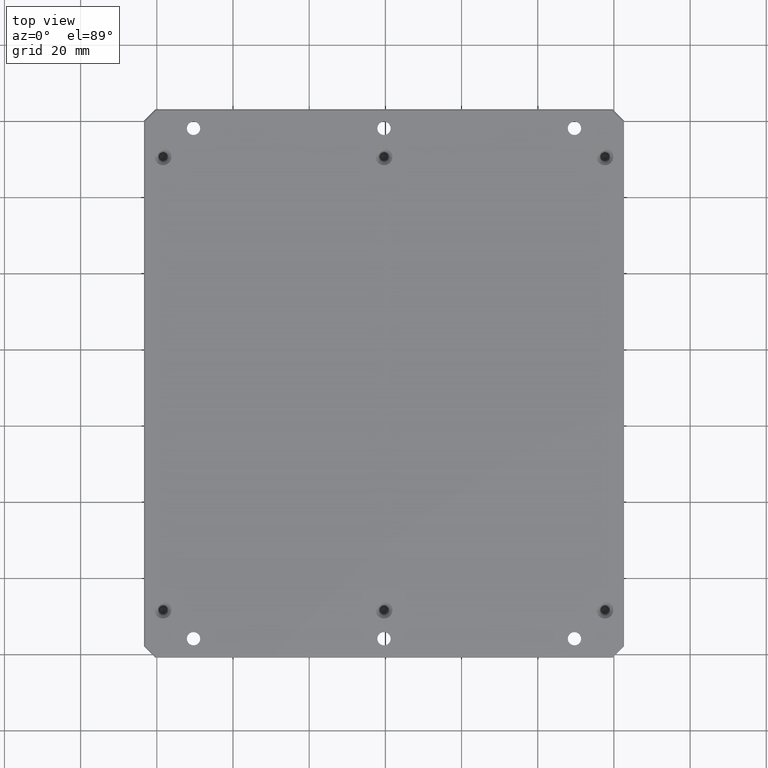
[diagram: clean part render]
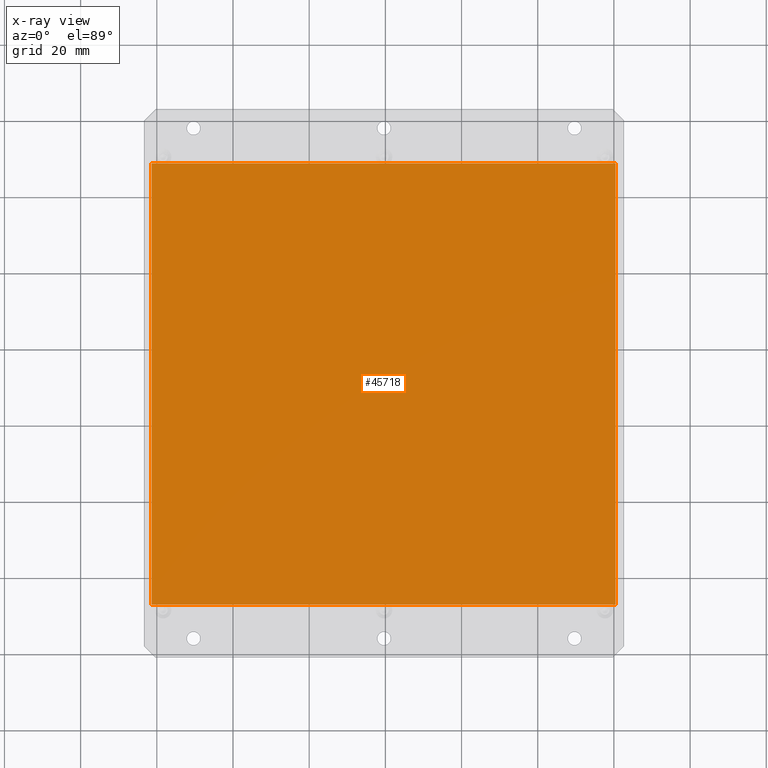
[diagram: x-ray — body ghosted, one internal face saturated and labeled with its STEP entity id]
A machine part, top view, then the same camera in x-ray: the body is ghosted and one INTERNAL B-rep face — a face not visible from any outside direction — is saturated and labeled: STEP entity #45718.
In plain terms, the highlighted planar face has unit normal (0, 0, 1).
Its self-contained STEP definition (entity closure, byte-faithful):
#338 = EDGE_CURVE ( 'NONE', #25991, #71489, #4761, .T. ) ;
#677 = CARTESIAN_POINT ( 'NONE',  ( -61.35509736540659300, -47.11034746086287600, 10.99999999998362900 ) ) ;
#1886 = DIRECTION ( 'NONE',  ( 2.220446049250312600E-016, -1.000000000000000000, -0.0000000000000000000 ) ) ;
#4761 = LINE ( 'NONE', #72180, #39994 ) ;
#7027 = VECTOR ( 'NONE', #73984, 1000.000000000000000 ) ;
#8076 = EDGE_CURVE ( 'NONE', #34581, #85966, #83920, .T. ) ;
#10206 = CARTESIAN_POINT ( 'NONE',  ( 60.44490263459338300, 68.68965253913712800, 10.99999999998362900 ) ) ;
#11059 = EDGE_LOOP ( 'NONE', ( #88912, #18578, #16967, #52656 ) ) ;
#14761 = CARTESIAN_POINT ( 'NONE',  ( -61.35509736540662100, 68.68965253913710000, 10.99999999998362900 ) ) ;
#14882 = EDGE_CURVE ( 'NONE', #71489, #34581, #67691, .T. ) ;
#16867 = DIRECTION ( 'NONE',  ( 0.0000000000000000000, 0.0000000000000000000, 1.000000000000000000 ) ) ;
#16967 = ORIENTED_EDGE ( 'NONE', *, *, #28721, .T. ) ;
#18578 = ORIENTED_EDGE ( 'NONE', *, *, #8076, .T. ) ;
#19763 = VECTOR ( 'NONE', #62757, 1000.000000000000000 ) ;
#25606 = CARTESIAN_POINT ( 'NONE',  ( -61.35509736540662100, 68.68965253913710000, 10.99999999998362900 ) ) ;
#25991 = VERTEX_POINT ( 'NONE', #85283 ) ;
#27955 = FACE_OUTER_BOUND ( 'NONE', #11059, .T. ) ;
#28721 = EDGE_CURVE ( 'NONE', #85966, #25991, #76017, .T. ) ;
#34581 = VERTEX_POINT ( 'NONE', #14761 ) ;
#38049 = CARTESIAN_POINT ( 'NONE',  ( -61.35509736540659300, -47.11034746086287600, 10.99999999998362900 ) ) ;
#39994 = VECTOR ( 'NONE', #51248, 1000.000000000000000 ) ;
#44861 = DIRECTION ( 'NONE',  ( -2.220446049250312600E-016, 1.000000000000000000, 0.0000000000000000000 ) ) ;
#45718 = ADVANCED_FACE ( 'NONE', ( #27955 ), #87749, .T. ) ;
#49192 = CARTESIAN_POINT ( 'NONE',  ( -61.35509736540659300, -47.11034746086289700, 10.99999999998362900 ) ) ;
#50382 = CARTESIAN_POINT ( 'NONE',  ( -61.35509736540659300, -47.11034746086289700, 10.99999999998362900 ) ) ;
#51248 = DIRECTION ( 'NONE',  ( -2.220446049250312600E-016, 1.000000000000000000, 0.0000000000000000000 ) ) ;
#52656 = ORIENTED_EDGE ( 'NONE', *, *, #338, .T. ) ;
#62757 = DIRECTION ( 'NONE',  ( 1.000000000000000000, 2.220446049250312600E-016, -0.0000000000000000000 ) ) ;
#67691 = LINE ( 'NONE', #25606, #7027 ) ;
#71489 = VERTEX_POINT ( 'NONE', #10206 ) ;
#71736 = VECTOR ( 'NONE', #1886, 1000.000000000000000 ) ;
#72180 = CARTESIAN_POINT ( 'NONE',  ( 60.44490263459341200, -47.11034746086284700, 10.99999999998362900 ) ) ;
#73984 = DIRECTION ( 'NONE',  ( -1.000000000000000000, -2.220446049250312600E-016, 0.0000000000000000000 ) ) ;
#74631 = AXIS2_PLACEMENT_3D ( 'NONE', #38049, #16867, #44861 ) ;
#76017 = LINE ( 'NONE', #49192, #19763 ) ;
#83920 = LINE ( 'NONE', #677, #71736 ) ;
#85283 = CARTESIAN_POINT ( 'NONE',  ( 60.44490263459341200, -47.11034746086287600, 10.99999999998362900 ) ) ;
#85966 = VERTEX_POINT ( 'NONE', #50382 ) ;
#87749 = PLANE ( 'NONE',  #74631 ) ;
#88912 = ORIENTED_EDGE ( 'NONE', *, *, #14882, .T. ) ;